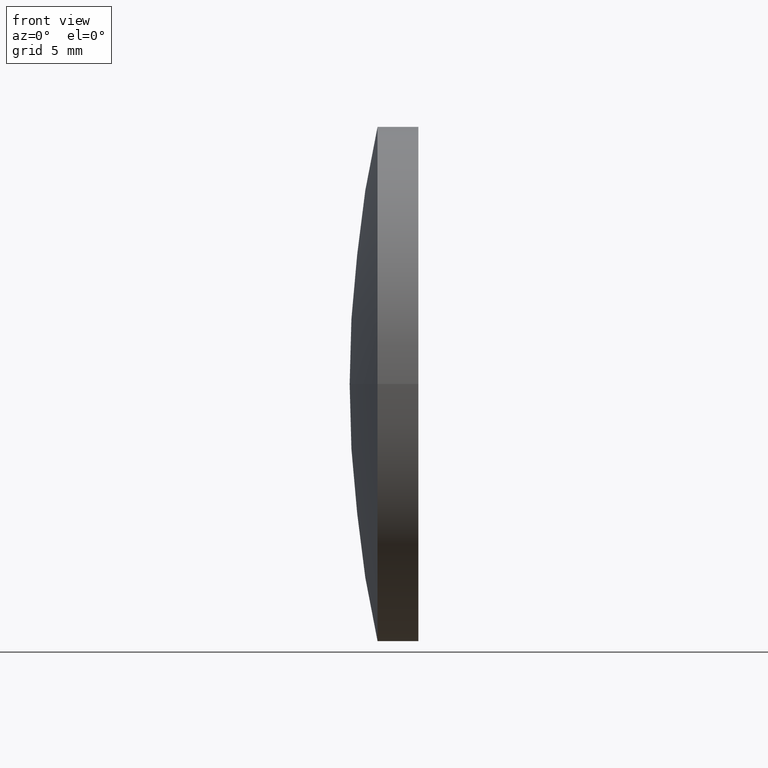
[diagram: clean part render]
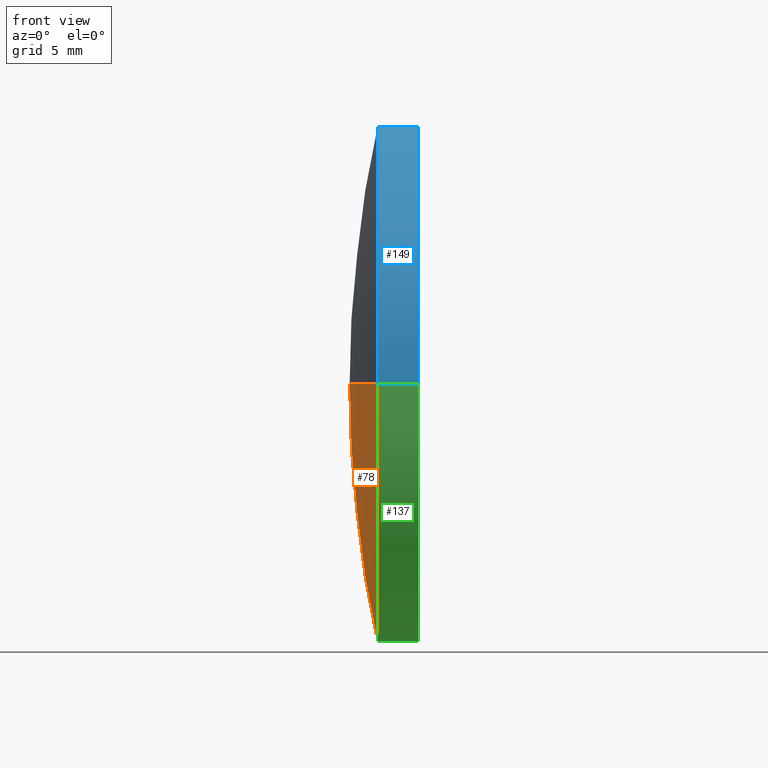
[diagram: same view with three faces highlighted in distinct colors, each labeled with its STEP entity id]
A machine part, front view with three faces highlighted in distinct colors.
Their STEP definitions:

[orange] entity #78 — the highlighted spherical surface has radius 89 mm.
#4 = CIRCLE ( 'NONE', #153, 88.99999999999997200 ) ;
#7 = DIRECTION ( 'NONE',  ( -8.496118506040342700E-032, 1.224646799147353200E-016, -1.000000000000000000 ) ) ;
#8 = CARTESIAN_POINT ( 'NONE',  ( 122.8554213155558000, 65.21684047094025500, 0.0000000000000000000 ) ) ;
#13 = CARTESIAN_POINT ( 'NONE',  ( 211.8554213155557900, 65.21684047094031200, 0.0000000000000000000 ) ) ;
#14 = VERTEX_POINT ( 'NONE', #156 ) ;
#16 = AXIS2_PLACEMENT_3D ( 'NONE', #126, #172, #147 ) ;
#30 = VERTEX_POINT ( 'NONE', #8 ) ;
#45 = DIRECTION ( 'NONE',  ( -0.0000000000000000000, 0.0000000000000000000, 1.000000000000000000 ) ) ;
#57 = AXIS2_PLACEMENT_3D ( 'NONE', #171, #64, #175 ) ;
#61 = DIRECTION ( 'NONE',  ( 1.000000000000000000, 0.0000000000000000000, 0.0000000000000000000 ) ) ;
#64 = DIRECTION ( 'NONE',  ( -0.0000000000000000000, 0.0000000000000000000, -1.000000000000000000 ) ) ;
#78 = ADVANCED_FACE ( 'NONE', ( #120 ), #114, .T. ) ;
#89 = ORIENTED_EDGE ( 'NONE', *, *, #183, .T. ) ;
#91 = DIRECTION ( 'NONE',  ( 0.0000000000000000000, 1.000000000000000000, 1.224646799147353000E-016 ) ) ;
#102 = EDGE_CURVE ( 'NONE', #14, #30, #4, .T. ) ;
#108 = ORIENTED_EDGE ( 'NONE', *, *, #119, .T. ) ;
#109 = CIRCLE ( 'NONE', #16, 19.02499999999991000 ) ;
#112 = CARTESIAN_POINT ( 'NONE',  ( 124.9126276233814100, 46.19184047094042000, 0.0000000000000000000 ) ) ;
#114 = SPHERICAL_SURFACE ( 'NONE', #57, 89.00000000000000000 ) ;
#118 = AXIS2_PLACEMENT_3D ( 'NONE', #139, #7, #91 ) ;
#119 = EDGE_CURVE ( 'NONE', #14, #129, #109, .T. ) ;
#120 = FACE_OUTER_BOUND ( 'NONE', #165, .T. ) ;
#126 = CARTESIAN_POINT ( 'NONE',  ( 124.9126276233814000, 65.21684047094032600, 0.0000000000000000000 ) ) ;
#129 = VERTEX_POINT ( 'NONE', #112 ) ;
#130 = CIRCLE ( 'NONE', #118, 89.00000000000000000 ) ;
#139 = CARTESIAN_POINT ( 'NONE',  ( 211.8554213155557900, 65.21684047094031200, 0.0000000000000000000 ) ) ;
#147 = DIRECTION ( 'NONE',  ( 7.294500818824978600E-016, -1.000000000000000000, 0.0000000000000000000 ) ) ;
#150 = ORIENTED_EDGE ( 'NONE', *, *, #102, .F. ) ;
#153 = AXIS2_PLACEMENT_3D ( 'NONE', #13, #45, #61 ) ;
#156 = CARTESIAN_POINT ( 'NONE',  ( 124.9126276233813800, 84.24184047094024700, 2.329890535377829300E-015 ) ) ;
#165 = EDGE_LOOP ( 'NONE', ( #108, #89, #150 ) ) ;
#171 = CARTESIAN_POINT ( 'NONE',  ( 211.8554213155557900, 65.21684047094031200, 0.0000000000000000000 ) ) ;
#172 = DIRECTION ( 'NONE',  ( -1.000000000000000000, -6.937607244762875000E-016, -0.0000000000000000000 ) ) ;
#175 = DIRECTION ( 'NONE',  ( -6.237208003512115800E-016, 1.000000000000000000, 0.0000000000000000000 ) ) ;
#183 = EDGE_CURVE ( 'NONE', #129, #30, #130, .T. ) ;

[blue] entity #149 — the highlighted cylindrical surface (partial cylindrical patch) has radius 19.025 mm, axis along (-1, -0, -0).
#12 = DIRECTION ( 'NONE',  ( -1.000000000000000000, -6.937607244762875000E-016, -0.0000000000000000000 ) ) ;
#14 = VERTEX_POINT ( 'NONE', #156 ) ;
#20 = CIRCLE ( 'NONE', #84, 19.02499999999991000 ) ;
#22 = EDGE_CURVE ( 'NONE', #122, #14, #94, .T. ) ;
#24 = ORIENTED_EDGE ( 'NONE', *, *, #22, .T. ) ;
#25 = DIRECTION ( 'NONE',  ( -1.000000000000000000, -6.937607244762875000E-016, -0.0000000000000000000 ) ) ;
#26 = VERTEX_POINT ( 'NONE', #73 ) ;
#27 = AXIS2_PLACEMENT_3D ( 'NONE', #190, #75, #111 ) ;
#32 = DIRECTION ( 'NONE',  ( -1.000000000000000000, -6.937607244762875000E-016, -0.0000000000000000000 ) ) ;
#36 = FACE_OUTER_BOUND ( 'NONE', #185, .T. ) ;
#37 = AXIS2_PLACEMENT_3D ( 'NONE', #96, #12, #127 ) ;
#46 = CARTESIAN_POINT ( 'NONE',  ( 124.9126276233814000, 65.21684047094032600, 0.0000000000000000000 ) ) ;
#53 = EDGE_CURVE ( 'NONE', #26, #129, #178, .T. ) ;
#58 = VECTOR ( 'NONE', #25, 1000.000000000000000 ) ;
#63 = VECTOR ( 'NONE', #85, 1000.000000000000000 ) ;
#73 = CARTESIAN_POINT ( 'NONE',  ( 127.9235157946422300, 46.19184047094010700, -2.329890535377837900E-015 ) ) ;
#74 = EDGE_CURVE ( 'NONE', #26, #122, #87, .T. ) ;
#75 = DIRECTION ( 'NONE',  ( -1.000000000000000000, -6.937607244762875000E-016, -0.0000000000000000000 ) ) ;
#83 = CARTESIAN_POINT ( 'NONE',  ( 115.9444912979631800, 46.19184047094039200, 0.0000000000000000000 ) ) ;
#84 = AXIS2_PLACEMENT_3D ( 'NONE', #46, #32, #158 ) ;
#85 = DIRECTION ( 'NONE',  ( -1.000000000000000000, -6.937607244762875000E-016, -0.0000000000000000000 ) ) ;
#87 = CIRCLE ( 'NONE', #27, 19.02499999999996700 ) ;
#94 = LINE ( 'NONE', #125, #63 ) ;
#96 = CARTESIAN_POINT ( 'NONE',  ( 115.9444912979631700, 65.21684047094032600, 0.0000000000000000000 ) ) ;
#101 = ORIENTED_EDGE ( 'NONE', *, *, #116, .F. ) ;
#103 = ORIENTED_EDGE ( 'NONE', *, *, #53, .F. ) ;
#111 = DIRECTION ( 'NONE',  ( 0.0000000000000000000, -1.000000000000000000, 0.0000000000000000000 ) ) ;
#112 = CARTESIAN_POINT ( 'NONE',  ( 124.9126276233814100, 46.19184047094042000, 0.0000000000000000000 ) ) ;
#116 = EDGE_CURVE ( 'NONE', #129, #14, #20, .T. ) ;
#122 = VERTEX_POINT ( 'NONE', #160 ) ;
#125 = CARTESIAN_POINT ( 'NONE',  ( 115.9444912979631500, 84.24184047094027500, 2.329890535377832000E-015 ) ) ;
#127 = DIRECTION ( 'NONE',  ( 7.294500818824967800E-016, -1.000000000000000000, 0.0000000000000000000 ) ) ;
#129 = VERTEX_POINT ( 'NONE', #112 ) ;
#133 = ORIENTED_EDGE ( 'NONE', *, *, #74, .T. ) ;
#149 = ADVANCED_FACE ( 'NONE', ( #36 ), #188, .T. ) ;
#156 = CARTESIAN_POINT ( 'NONE',  ( 124.9126276233813800, 84.24184047094024700, 2.329890535377829300E-015 ) ) ;
#158 = DIRECTION ( 'NONE',  ( 7.294500818824978600E-016, -1.000000000000000000, 0.0000000000000000000 ) ) ;
#160 = CARTESIAN_POINT ( 'NONE',  ( 127.9235157946422300, 84.24184047094033200, 0.0000000000000000000 ) ) ;
#178 = LINE ( 'NONE', #83, #58 ) ;
#185 = EDGE_LOOP ( 'NONE', ( #133, #24, #101, #103 ) ) ;
#188 = CYLINDRICAL_SURFACE ( 'NONE', #37, 19.02499999999993800 ) ;
#190 = CARTESIAN_POINT ( 'NONE',  ( 127.9235157946422300, 65.21684047094034000, 0.0000000000000000000 ) ) ;

[green] entity #137 — the highlighted cylindrical surface (partial cylindrical patch) has radius 19.025 mm, axis along (-1, -0, -0).
#5 = CYLINDRICAL_SURFACE ( 'NONE', #134, 19.02499999999993800 ) ;
#14 = VERTEX_POINT ( 'NONE', #156 ) ;
#16 = AXIS2_PLACEMENT_3D ( 'NONE', #126, #172, #147 ) ;
#21 = ORIENTED_EDGE ( 'NONE', *, *, #53, .T. ) ;
#22 = EDGE_CURVE ( 'NONE', #122, #14, #94, .T. ) ;
#23 = DIRECTION ( 'NONE',  ( -1.000000000000000000, -6.937607244762875000E-016, -0.0000000000000000000 ) ) ;
#25 = DIRECTION ( 'NONE',  ( -1.000000000000000000, -6.937607244762875000E-016, -0.0000000000000000000 ) ) ;
#26 = VERTEX_POINT ( 'NONE', #73 ) ;
#31 = CARTESIAN_POINT ( 'NONE',  ( 115.9444912979631700, 65.21684047094032600, 0.0000000000000000000 ) ) ;
#53 = EDGE_CURVE ( 'NONE', #26, #129, #178, .T. ) ;
#58 = VECTOR ( 'NONE', #25, 1000.000000000000000 ) ;
#62 = DIRECTION ( 'NONE',  ( -1.000000000000000000, -6.937607244762875000E-016, -0.0000000000000000000 ) ) ;
#63 = VECTOR ( 'NONE', #85, 1000.000000000000000 ) ;
#71 = ORIENTED_EDGE ( 'NONE', *, *, #22, .F. ) ;
#73 = CARTESIAN_POINT ( 'NONE',  ( 127.9235157946422300, 46.19184047094010700, -2.329890535377837900E-015 ) ) ;
#80 = CARTESIAN_POINT ( 'NONE',  ( 127.9235157946422300, 65.21684047094034000, 0.0000000000000000000 ) ) ;
#83 = CARTESIAN_POINT ( 'NONE',  ( 115.9444912979631800, 46.19184047094039200, 0.0000000000000000000 ) ) ;
#85 = DIRECTION ( 'NONE',  ( -1.000000000000000000, -6.937607244762875000E-016, -0.0000000000000000000 ) ) ;
#93 = ORIENTED_EDGE ( 'NONE', *, *, #164, .T. ) ;
#94 = LINE ( 'NONE', #125, #63 ) ;
#109 = CIRCLE ( 'NONE', #16, 19.02499999999991000 ) ;
#112 = CARTESIAN_POINT ( 'NONE',  ( 124.9126276233814100, 46.19184047094042000, 0.0000000000000000000 ) ) ;
#115 = CIRCLE ( 'NONE', #166, 19.02499999999996700 ) ;
#119 = EDGE_CURVE ( 'NONE', #14, #129, #109, .T. ) ;
#121 = DIRECTION ( 'NONE',  ( 0.0000000000000000000, -1.000000000000000000, 0.0000000000000000000 ) ) ;
#122 = VERTEX_POINT ( 'NONE', #160 ) ;
#124 = ORIENTED_EDGE ( 'NONE', *, *, #119, .F. ) ;
#125 = CARTESIAN_POINT ( 'NONE',  ( 115.9444912979631500, 84.24184047094027500, 2.329890535377832000E-015 ) ) ;
#126 = CARTESIAN_POINT ( 'NONE',  ( 124.9126276233814000, 65.21684047094032600, 0.0000000000000000000 ) ) ;
#129 = VERTEX_POINT ( 'NONE', #112 ) ;
#131 = DIRECTION ( 'NONE',  ( 7.294500818824967800E-016, -1.000000000000000000, 0.0000000000000000000 ) ) ;
#134 = AXIS2_PLACEMENT_3D ( 'NONE', #31, #62, #131 ) ;
#137 = ADVANCED_FACE ( 'NONE', ( #192 ), #5, .T. ) ;
#147 = DIRECTION ( 'NONE',  ( 7.294500818824978600E-016, -1.000000000000000000, 0.0000000000000000000 ) ) ;
#156 = CARTESIAN_POINT ( 'NONE',  ( 124.9126276233813800, 84.24184047094024700, 2.329890535377829300E-015 ) ) ;
#160 = CARTESIAN_POINT ( 'NONE',  ( 127.9235157946422300, 84.24184047094033200, 0.0000000000000000000 ) ) ;
#164 = EDGE_CURVE ( 'NONE', #122, #26, #115, .T. ) ;
#166 = AXIS2_PLACEMENT_3D ( 'NONE', #80, #23, #121 ) ;
#170 = EDGE_LOOP ( 'NONE', ( #71, #93, #21, #124 ) ) ;
#172 = DIRECTION ( 'NONE',  ( -1.000000000000000000, -6.937607244762875000E-016, -0.0000000000000000000 ) ) ;
#178 = LINE ( 'NONE', #83, #58 ) ;
#192 = FACE_OUTER_BOUND ( 'NONE', #170, .T. ) ;